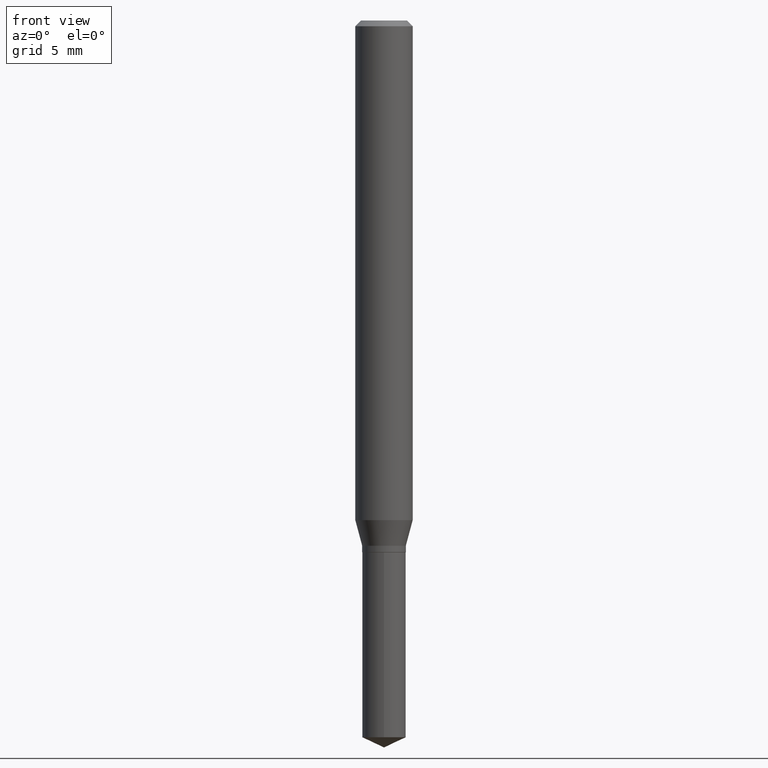
[diagram: clean part render]
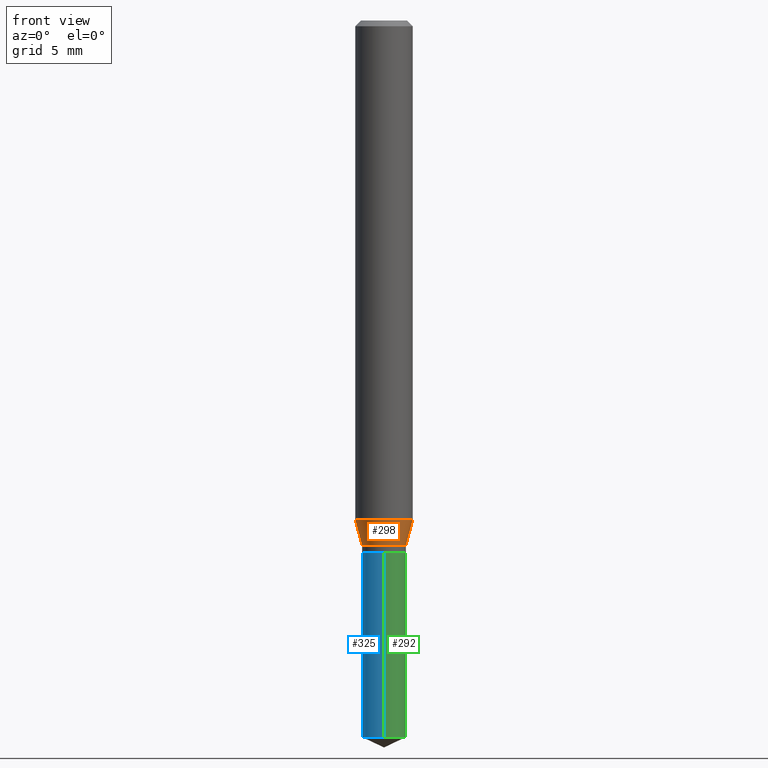
[diagram: same view with three faces highlighted in distinct colors, each labeled with its STEP entity id]
A machine part, front view with three faces highlighted in distinct colors.
Their STEP definitions:

[orange] entity #298 — the highlighted conical surface has half-angle 15 deg.
#5 = DIRECTION ( 'NONE',  ( -2.445468806185136597E-29, 3.491481338843145583E-15, 1.000000000000000000 ) ) ;
#19 = VERTEX_POINT ( 'NONE', #100 ) ;
#47 = EDGE_CURVE ( 'NONE', #488, #83, #173, .T. ) ;
#50 = DIRECTION ( 'NONE',  ( -2.445468806185136597E-29, 3.491481338843145583E-15, 1.000000000000000000 ) ) ;
#58 = AXIS2_PLACEMENT_3D ( 'NONE', #182, #364, #252 ) ;
#75 = DIRECTION ( 'NONE',  ( 0.2588190451025215166, 1.565188264969620784E-15, 0.9659258262890679791 ) ) ;
#76 = CARTESIAN_POINT ( 'NONE',  ( 0.05905000000000013016, -4.002255315040900596E-15, -1.028191481072900038 ) ) ;
#80 = AXIS2_PLACEMENT_3D ( 'NONE', #195, #5, #454 ) ;
#83 = VERTEX_POINT ( 'NONE', #443 ) ;
#87 = ORIENTED_EDGE ( 'NONE', *, *, #47, .F. ) ;
#93 = LINE ( 'NONE', #224, #295 ) ;
#100 = CARTESIAN_POINT ( 'NONE',  ( 0.04490000000000000241, -4.087826351517553684E-15, -1.080999999999999961 ) ) ;
#111 = CIRCLE ( 'NONE', #80, 0.05905000000000013016 ) ;
#137 = DIRECTION ( 'NONE',  ( -0.2588190451025215166, 5.211531920934551042E-15, 0.9659258262890679791 ) ) ;
#173 = LINE ( 'NONE', #321, #403 ) ;
#182 = CARTESIAN_POINT ( 'NONE',  ( 2.643551779486132320E-29, -3.774291327289439810E-15, -1.080999999999999961 ) ) ;
#195 = CARTESIAN_POINT ( 'NONE',  ( 2.514410193749072168E-29, -3.589911368923525676E-15, -1.028191481072900038 ) ) ;
#207 = EDGE_LOOP ( 'NONE', ( #87, #303, #476, #333 ) ) ;
#224 = CARTESIAN_POINT ( 'NONE',  ( 0.04490000000000000241, -4.087826351517553684E-15, -1.080999999999999961 ) ) ;
#252 = DIRECTION ( 'NONE',  ( 1.000000000000000000, -6.982962677686263555E-15, 0.000000000000000000 ) ) ;
#293 = CARTESIAN_POINT ( 'NONE',  ( -0.04490000000000000241, -3.477952267635635589E-15, -1.080999999999999961 ) ) ;
#295 = VECTOR ( 'NONE', #75, 39.37007874015748143 ) ;
#298 = ADVANCED_FACE ( 'NONE', ( #342 ), #452, .T. ) ;
#303 = ORIENTED_EDGE ( 'NONE', *, *, #433, .T. ) ;
#313 = DIRECTION ( 'NONE',  ( 1.000000000000000000, -6.982962677686263555E-15, 0.000000000000000000 ) ) ;
#321 = CARTESIAN_POINT ( 'NONE',  ( -0.04490000000000000241, -3.455257638933155254E-15, -1.080999999999999961 ) ) ;
#333 = ORIENTED_EDGE ( 'NONE', *, *, #373, .F. ) ;
#342 = FACE_OUTER_BOUND ( 'NONE', #207, .T. ) ;
#364 = DIRECTION ( 'NONE',  ( -2.445468806185136597E-29, 3.491481338843145583E-15, 1.000000000000000000 ) ) ;
#367 = EDGE_CURVE ( 'NONE', #19, #460, #93, .T. ) ;
#373 = EDGE_CURVE ( 'NONE', #83, #460, #111, .T. ) ;
#403 = VECTOR ( 'NONE', #137, 39.37007874015748143 ) ;
#417 = AXIS2_PLACEMENT_3D ( 'NONE', #463, #50, #313 ) ;
#427 = CIRCLE ( 'NONE', #58, 0.04490000000000000241 ) ;
#433 = EDGE_CURVE ( 'NONE', #488, #19, #427, .T. ) ;
#443 = CARTESIAN_POINT ( 'NONE',  ( -0.05905000000000013016, -3.170335883457185788E-15, -1.028191481072900038 ) ) ;
#452 = CONICAL_SURFACE ( 'NONE', #417, 0.04490000000000000241, 0.2617993877991502405 ) ;
#454 = DIRECTION ( 'NONE',  ( 1.000000000000000000, -6.982962677686265133E-15, 0.000000000000000000 ) ) ;
#460 = VERTEX_POINT ( 'NONE', #76 ) ;
#463 = CARTESIAN_POINT ( 'NONE',  ( 2.643551779486132320E-29, -3.774291327289439810E-15, -1.080999999999999961 ) ) ;
#476 = ORIENTED_EDGE ( 'NONE', *, *, #367, .T. ) ;
#488 = VERTEX_POINT ( 'NONE', #293 ) ;

[blue] entity #325 — the highlighted cylindrical surface (edge-blend (fillet) strip) has radius 1.1405 mm, axis along (-0, 0, 1).
#14 = CIRCLE ( 'NONE', #161, 0.04490000000000000241 ) ;
#32 = EDGE_CURVE ( 'NONE', #155, #450, #90, .T. ) ;
#33 = DIRECTION ( 'NONE',  ( -6.982962677686266711E-15, -1.000000000000000000, 3.042146986263099323E-15 ) ) ;
#40 = CARTESIAN_POINT ( 'NONE',  ( 3.190336883563210417E-16, 0.04489999999999617908, -1.094500000000000028 ) ) ;
#60 = EDGE_LOOP ( 'NONE', ( #118, #434, #181, #101 ) ) ;
#90 = LINE ( 'NONE', #208, #355 ) ;
#101 = ORIENTED_EDGE ( 'NONE', *, *, #143, .F. ) ;
#112 = CARTESIAN_POINT ( 'NONE',  ( 3.607460806401367786E-29, -5.150508740125733757E-15, -1.475162786148840777 ) ) ;
#118 = ORIENTED_EDGE ( 'NONE', *, *, #449, .F. ) ;
#143 = EDGE_CURVE ( 'NONE', #372, #450, #178, .T. ) ;
#155 = VERTEX_POINT ( 'NONE', #258 ) ;
#161 = AXIS2_PLACEMENT_3D ( 'NONE', #112, #197, #279 ) ;
#166 = CARTESIAN_POINT ( 'NONE',  ( 2.676565608369631794E-29, -3.821426325363822773E-15, -1.094499999999999806 ) ) ;
#178 = CIRCLE ( 'NONE', #338, 0.04490000000000000241 ) ;
#179 = VECTOR ( 'NONE', #296, 39.37007874015748143 ) ;
#181 = ORIENTED_EDGE ( 'NONE', *, *, #32, .T. ) ;
#183 = DIRECTION ( 'NONE',  ( -2.445458899330790108E-29, 3.491495526022433205E-15, 1.000000000000000000 ) ) ;
#197 = DIRECTION ( 'NONE',  ( -2.445458899330790108E-29, 3.491495526022433205E-15, 1.000000000000000000 ) ) ;
#208 = CARTESIAN_POINT ( 'NONE',  ( -3.135350242280866089E-16, -0.04490000000000382574, -1.094499999999999806 ) ) ;
#217 = CARTESIAN_POINT ( 'NONE',  ( 3.190336883563116739E-16, 0.04489999999999617908, -1.094500000000000028 ) ) ;
#258 = CARTESIAN_POINT ( 'NONE',  ( -3.135350242280772904E-16, -0.04490000000000515107, -1.475162786148840555 ) ) ;
#279 = DIRECTION ( 'NONE',  ( -6.982962677686266711E-15, -1.000000000000000000, 6.084293972526198645E-15 ) ) ;
#287 = DIRECTION ( 'NONE',  ( -2.445458899330790108E-29, 3.491495526022433599E-15, 1.000000000000000000 ) ) ;
#296 = DIRECTION ( 'NONE',  ( -2.445458899330790108E-29, 3.491495526022433599E-15, 1.000000000000000000 ) ) ;
#304 = CARTESIAN_POINT ( 'NONE',  ( -3.135350242280866089E-16, -0.04490000000000382574, -1.094499999999999806 ) ) ;
#307 = DIRECTION ( 'NONE',  ( -2.445458899330790108E-29, 3.491495526022433205E-15, 1.000000000000000000 ) ) ;
#316 = DIRECTION ( 'NONE',  ( -6.982962677686266711E-15, -1.000000000000000000, 3.042146986263099323E-15 ) ) ;
#325 = ADVANCED_FACE ( 'NONE', ( #420 ), #423, .T. ) ;
#327 = CARTESIAN_POINT ( 'NONE',  ( 3.190336883563209924E-16, 0.04489999999999483987, -1.475162786148840999 ) ) ;
#338 = AXIS2_PLACEMENT_3D ( 'NONE', #479, #183, #33 ) ;
#351 = EDGE_CURVE ( 'NONE', #474, #155, #14, .T. ) ;
#355 = VECTOR ( 'NONE', #287, 39.37007874015748143 ) ;
#372 = VERTEX_POINT ( 'NONE', #40 ) ;
#420 = FACE_OUTER_BOUND ( 'NONE', #60, .T. ) ;
#423 = CYLINDRICAL_SURFACE ( 'NONE', #446, 0.04490000000000000241 ) ;
#434 = ORIENTED_EDGE ( 'NONE', *, *, #351, .T. ) ;
#446 = AXIS2_PLACEMENT_3D ( 'NONE', #166, #307, #316 ) ;
#448 = LINE ( 'NONE', #217, #179 ) ;
#449 = EDGE_CURVE ( 'NONE', #474, #372, #448, .T. ) ;
#450 = VERTEX_POINT ( 'NONE', #304 ) ;
#474 = VERTEX_POINT ( 'NONE', #327 ) ;
#479 = CARTESIAN_POINT ( 'NONE',  ( 2.676565608369631794E-29, -3.821426325363822773E-15, -1.094499999999999806 ) ) ;

[green] entity #292 — the highlighted cylindrical surface (edge-blend (fillet) strip) has radius 1.1405 mm, axis along (-0, 0, 1).
#10 = DIRECTION ( 'NONE',  ( -6.982962677686266711E-15, -1.000000000000000000, 3.042146986263099323E-15 ) ) ;
#32 = EDGE_CURVE ( 'NONE', #155, #450, #90, .T. ) ;
#40 = CARTESIAN_POINT ( 'NONE',  ( 3.190336883563210417E-16, 0.04489999999999617908, -1.094500000000000028 ) ) ;
#62 = ORIENTED_EDGE ( 'NONE', *, *, #356, .F. ) ;
#69 = CARTESIAN_POINT ( 'NONE',  ( 3.607460806401367786E-29, -5.150508740125733757E-15, -1.475162786148840777 ) ) ;
#86 = CYLINDRICAL_SURFACE ( 'NONE', #92, 0.04490000000000000241 ) ;
#90 = LINE ( 'NONE', #208, #355 ) ;
#92 = AXIS2_PLACEMENT_3D ( 'NONE', #371, #125, #10 ) ;
#125 = DIRECTION ( 'NONE',  ( -2.445458899330790108E-29, 3.491495526022433205E-15, 1.000000000000000000 ) ) ;
#153 = EDGE_CURVE ( 'NONE', #155, #474, #432, .T. ) ;
#155 = VERTEX_POINT ( 'NONE', #258 ) ;
#157 = ORIENTED_EDGE ( 'NONE', *, *, #153, .T. ) ;
#159 = DIRECTION ( 'NONE',  ( -2.445458899330790108E-29, 3.491495526022433205E-15, 1.000000000000000000 ) ) ;
#164 = DIRECTION ( 'NONE',  ( -6.982962677686266711E-15, -1.000000000000000000, 3.042146986263099323E-15 ) ) ;
#179 = VECTOR ( 'NONE', #296, 39.37007874015748143 ) ;
#199 = ORIENTED_EDGE ( 'NONE', *, *, #449, .T. ) ;
#208 = CARTESIAN_POINT ( 'NONE',  ( -3.135350242280866089E-16, -0.04490000000000382574, -1.094499999999999806 ) ) ;
#217 = CARTESIAN_POINT ( 'NONE',  ( 3.190336883563116739E-16, 0.04489999999999617908, -1.094500000000000028 ) ) ;
#258 = CARTESIAN_POINT ( 'NONE',  ( -3.135350242280772904E-16, -0.04490000000000515107, -1.475162786148840555 ) ) ;
#265 = CARTESIAN_POINT ( 'NONE',  ( 2.676565608369631794E-29, -3.821426325363822773E-15, -1.094499999999999806 ) ) ;
#287 = DIRECTION ( 'NONE',  ( -2.445458899330790108E-29, 3.491495526022433599E-15, 1.000000000000000000 ) ) ;
#288 = CIRCLE ( 'NONE', #308, 0.04490000000000000241 ) ;
#289 = EDGE_LOOP ( 'NONE', ( #157, #199, #62, #319 ) ) ;
#292 = ADVANCED_FACE ( 'NONE', ( #445 ), #86, .T. ) ;
#296 = DIRECTION ( 'NONE',  ( -2.445458899330790108E-29, 3.491495526022433599E-15, 1.000000000000000000 ) ) ;
#304 = CARTESIAN_POINT ( 'NONE',  ( -3.135350242280866089E-16, -0.04490000000000382574, -1.094499999999999806 ) ) ;
#308 = AXIS2_PLACEMENT_3D ( 'NONE', #265, #159, #164 ) ;
#319 = ORIENTED_EDGE ( 'NONE', *, *, #32, .F. ) ;
#327 = CARTESIAN_POINT ( 'NONE',  ( 3.190336883563209924E-16, 0.04489999999999483987, -1.475162786148840999 ) ) ;
#334 = DIRECTION ( 'NONE',  ( -2.445458899330790108E-29, 3.491495526022433205E-15, 1.000000000000000000 ) ) ;
#355 = VECTOR ( 'NONE', #287, 39.37007874015748143 ) ;
#356 = EDGE_CURVE ( 'NONE', #450, #372, #288, .T. ) ;
#371 = CARTESIAN_POINT ( 'NONE',  ( 2.676565608369631794E-29, -3.821426325363822773E-15, -1.094499999999999806 ) ) ;
#372 = VERTEX_POINT ( 'NONE', #40 ) ;
#432 = CIRCLE ( 'NONE', #471, 0.04490000000000000241 ) ;
#440 = DIRECTION ( 'NONE',  ( -6.982962677686266711E-15, -1.000000000000000000, 6.084293972526198645E-15 ) ) ;
#445 = FACE_OUTER_BOUND ( 'NONE', #289, .T. ) ;
#448 = LINE ( 'NONE', #217, #179 ) ;
#449 = EDGE_CURVE ( 'NONE', #474, #372, #448, .T. ) ;
#450 = VERTEX_POINT ( 'NONE', #304 ) ;
#471 = AXIS2_PLACEMENT_3D ( 'NONE', #69, #334, #440 ) ;
#474 = VERTEX_POINT ( 'NONE', #327 ) ;